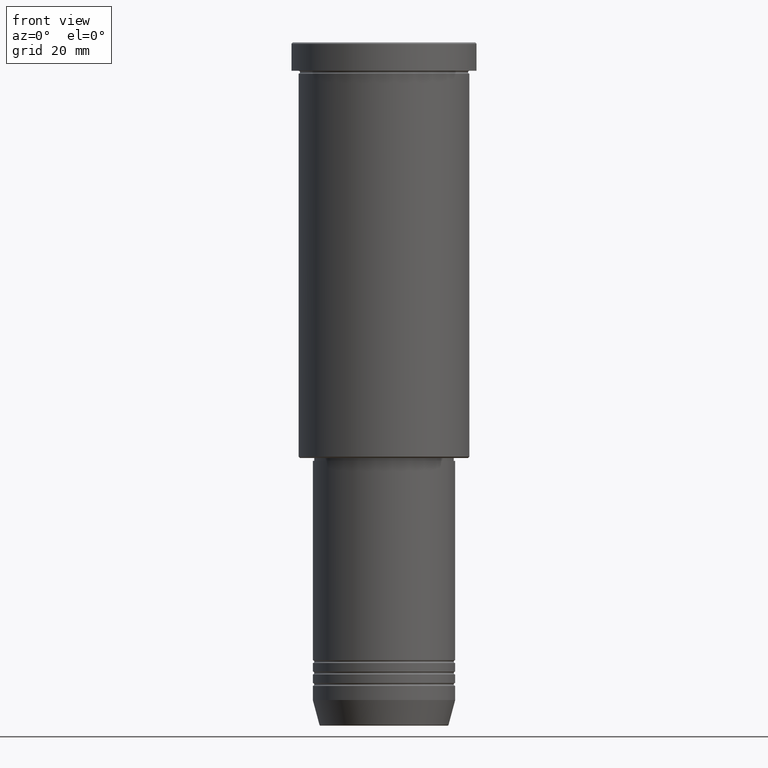
[diagram: clean part render]
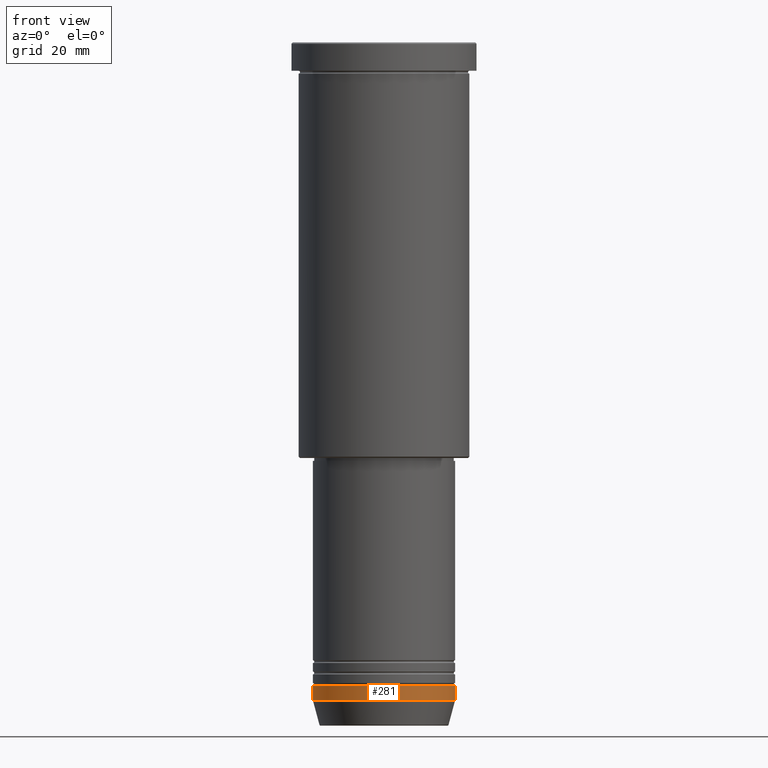
[diagram: same view with one face highlighted and labeled with its STEP entity id]
A machine part, front view. The second image highlights one B-rep face of the part: STEP entity #281.
In plain terms, the highlighted cylindrical surface (partial cylindrical patch) has radius 25 mm, axis along (-0, -0, 1).
Its self-contained STEP definition (entity closure, byte-faithful):
#7 = CARTESIAN_POINT ( 'NONE',  ( -25.00000000000000000, 3.061616997868383043E-15, 0.000000000000000000 ) ) ;
#19 = CARTESIAN_POINT ( 'NONE',  ( 25.00000000000000000, 0.000000000000000000, -231.0000000000000000 ) ) ;
#22 = CARTESIAN_POINT ( 'NONE',  ( 0.000000000000000000, 0.000000000000000000, -226.0000000000000000 ) ) ;
#50 = CIRCLE ( 'NONE', #192, 25.00000000000000000 ) ;
#66 = CARTESIAN_POINT ( 'NONE',  ( -25.00000000000000000, 3.061616997868383043E-15, -226.0000000000000000 ) ) ;
#112 = DIRECTION ( 'NONE',  ( 1.000000000000000000, 0.000000000000000000, 0.000000000000000000 ) ) ;
#157 = CARTESIAN_POINT ( 'NONE',  ( 25.00000000000000000, 0.000000000000000000, -226.0000000000000000 ) ) ;
#181 = DIRECTION ( 'NONE',  ( -0.000000000000000000, -0.000000000000000000, 1.000000000000000000 ) ) ;
#189 = VECTOR ( 'NONE', #283, 1000.000000000000000 ) ;
#192 = AXIS2_PLACEMENT_3D ( 'NONE', #846, #1092, #655 ) ;
#219 = VERTEX_POINT ( 'NONE', #19 ) ;
#234 = FACE_OUTER_BOUND ( 'NONE', #1054, .T. ) ;
#280 = VERTEX_POINT ( 'NONE', #976 ) ;
#281 = ADVANCED_FACE ( 'NONE', ( #234 ), #581, .T. ) ;
#283 = DIRECTION ( 'NONE',  ( -0.000000000000000000, -0.000000000000000000, 1.000000000000000000 ) ) ;
#304 = CARTESIAN_POINT ( 'NONE',  ( 0.000000000000000000, 0.000000000000000000, 0.000000000000000000 ) ) ;
#319 = DIRECTION ( 'NONE',  ( 1.000000000000000000, 0.000000000000000000, 0.000000000000000000 ) ) ;
#367 = CARTESIAN_POINT ( 'NONE',  ( 25.00000000000000000, 0.000000000000000000, 0.000000000000000000 ) ) ;
#447 = VECTOR ( 'NONE', #1106, 1000.000000000000000 ) ;
#457 = LINE ( 'NONE', #7, #447 ) ;
#488 = AXIS2_PLACEMENT_3D ( 'NONE', #22, #181, #112 ) ;
#581 = CYLINDRICAL_SURFACE ( 'NONE', #1116, 25.00000000000000000 ) ;
#590 = ORIENTED_EDGE ( 'NONE', *, *, #592, .T. ) ;
#592 = EDGE_CURVE ( 'NONE', #219, #938, #746, .T. ) ;
#648 = EDGE_CURVE ( 'NONE', #280, #870, #457, .T. ) ;
#655 = DIRECTION ( 'NONE',  ( 1.000000000000000000, 0.000000000000000000, 0.000000000000000000 ) ) ;
#663 = ORIENTED_EDGE ( 'NONE', *, *, #1071, .T. ) ;
#746 = LINE ( 'NONE', #367, #189 ) ;
#846 = CARTESIAN_POINT ( 'NONE',  ( 0.000000000000000000, 0.000000000000000000, -231.0000000000000000 ) ) ;
#870 = VERTEX_POINT ( 'NONE', #66 ) ;
#920 = ORIENTED_EDGE ( 'NONE', *, *, #1108, .F. ) ;
#938 = VERTEX_POINT ( 'NONE', #157 ) ;
#976 = CARTESIAN_POINT ( 'NONE',  ( -25.00000000000000000, 3.061616997868383043E-15, -231.0000000000000000 ) ) ;
#1054 = EDGE_LOOP ( 'NONE', ( #1165, #663, #590, #920 ) ) ;
#1071 = EDGE_CURVE ( 'NONE', #280, #219, #50, .T. ) ;
#1092 = DIRECTION ( 'NONE',  ( -0.000000000000000000, -0.000000000000000000, 1.000000000000000000 ) ) ;
#1106 = DIRECTION ( 'NONE',  ( -0.000000000000000000, -0.000000000000000000, 1.000000000000000000 ) ) ;
#1108 = EDGE_CURVE ( 'NONE', #870, #938, #1140, .T. ) ;
#1116 = AXIS2_PLACEMENT_3D ( 'NONE', #304, #1151, #319 ) ;
#1140 = CIRCLE ( 'NONE', #488, 25.00000000000000000 ) ;
#1151 = DIRECTION ( 'NONE',  ( -0.000000000000000000, -0.000000000000000000, 1.000000000000000000 ) ) ;
#1165 = ORIENTED_EDGE ( 'NONE', *, *, #648, .F. ) ;